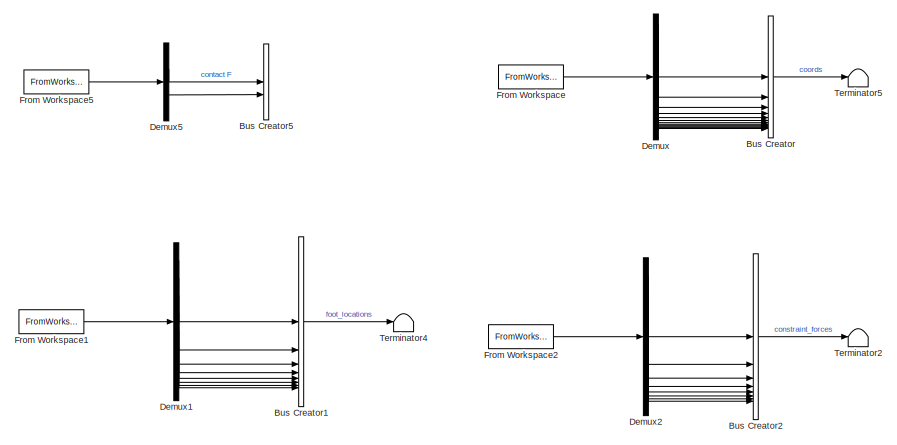
[diagram: root canvas - part 1/2, top center region]
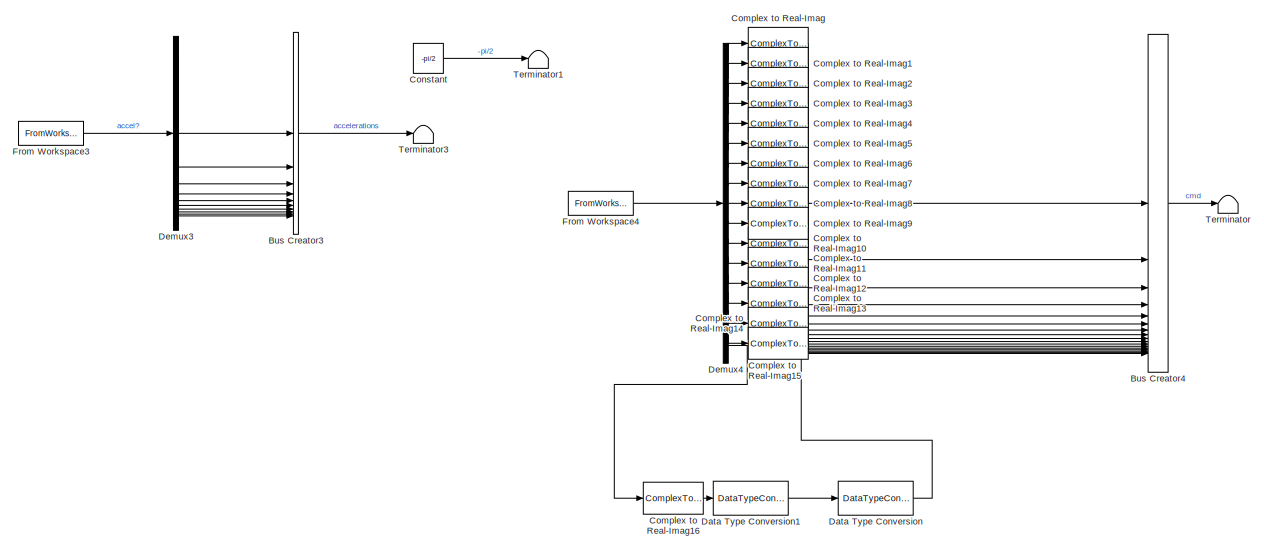
[diagram: root canvas - part 2/2, full width, bottom band]
MODEL slx_690d9588bcd3
KIND model
CONFIG AbsTol = 1e-12
CONFIG EnableMultiTasking = off
CONFIG FixedStep = auto
CONFIG MaxStep = 0.00001
CONFIG MinStep = auto
CONFIG RelTol = 1e-12
CONFIG SampleTimeConstraint = Unconstrained
CONFIG SolverName = ode45
CONFIG StartTime = 0.0
CONFIG StopTime = Sim.time
BLOCK [BusCreator] Bus Creator
  DisplayOption = bar
  InheritFromInputs = off
  Inputs = 12
  OutDataTypeStr = Bus: Coordinate
BLOCK [BusCreator] Bus Creator1
  DisplayOption = bar
  InheritFromInputs = off
  Inputs = 8
  OutDataTypeStr = Bus: Foot
BLOCK [BusCreator] Bus Creator2
  DisplayOption = bar
  InheritFromInputs = off
  Inputs = 8
  OutDataTypeStr = Bus: ConstraintForces
BLOCK [BusCreator] Bus Creator3
  DisplayOption = bar
  InheritFromInputs = off
  Inputs = 10
  OutDataTypeStr = Bus: Accel
BLOCK [BusCreator] Bus Creator4
  DisplayOption = bar
  InheritFromInputs = off
  Inputs = 17
  OutDataTypeStr = Bus: Cmd
BLOCK [BusCreator] Bus Creator5
  DisplayOption = bar
  InheritFromInputs = off
  Inputs = 2
  NonVirtualBus = on
  OutDataTypeStr = Bus: Contact
BLOCK [ComplexToRealImag] Complex to Real-Imag
  Output = Real
BLOCK [ComplexToRealImag] Complex to Real-Imag1
  Output = Real
BLOCK [ComplexToRealImag] Complex to Real-Imag10
  Output = Real
BLOCK [ComplexToRealImag] Complex to Real-Imag11
  Output = Real
BLOCK [ComplexToRealImag] Complex to Real-Imag12
  Output = Real
BLOCK [ComplexToRealImag] Complex to Real-Imag13
  Output = Real
BLOCK [ComplexToRealImag] Complex to Real-Imag14
  Output = Real
BLOCK [ComplexToRealImag] Complex to Real-Imag15
  Output = Real
BLOCK [ComplexToRealImag] Complex to Real-Imag16
  Output = Real
BLOCK [ComplexToRealImag] Complex to Real-Imag2
  Output = Real
BLOCK [ComplexToRealImag] Complex to Real-Imag3
  Output = Real
BLOCK [ComplexToRealImag] Complex to Real-Imag4
  Output = Real
BLOCK [ComplexToRealImag] Complex to Real-Imag5
  Output = Real
BLOCK [ComplexToRealImag] Complex to Real-Imag6
  Output = Real
BLOCK [ComplexToRealImag] Complex to Real-Imag7
  Output = Real
BLOCK [ComplexToRealImag] Complex to Real-Imag8
  Output = Real
BLOCK [ComplexToRealImag] Complex to Real-Imag9
  Output = Real
BLOCK [Constant] Constant
  Value = -pi/2
BLOCK [DataTypeConversion] Data Type Conversion
  OutDataTypeStr = Enum: States
  RndMeth = Floor
  SaturateOnIntegerOverflow = off
BLOCK [DataTypeConversion] Data Type Conversion1
  OutDataTypeStr = int16
  RndMeth = Floor
  SaturateOnIntegerOverflow = off
BLOCK [Demux] Demux
  Outputs = 12
BLOCK [Demux] Demux1
  Outputs = 8
BLOCK [Demux] Demux2
  Outputs = 8
BLOCK [Demux] Demux3
  Outputs = 10
BLOCK [Demux] Demux4
  Outputs = 17
BLOCK [Demux] Demux5
  Outputs = 2
BLOCK [FromWorkspace] From Workspace
  VariableName = coords_sols
BLOCK [FromWorkspace] From Workspace1
  VariableName = foot_sols
BLOCK [FromWorkspace] From Workspace2
  VariableName = constraint_forces_sols
BLOCK [FromWorkspace] From Workspace3
  VariableName = accel_sols
BLOCK [FromWorkspace] From Workspace4
  VariableName = cmd_sols
BLOCK [FromWorkspace] From Workspace5
  VariableName = contact_sols
BLOCK [Terminator] Terminator
BLOCK [Terminator] Terminator1
BLOCK [Terminator] Terminator2
BLOCK [Terminator] Terminator3
BLOCK [Terminator] Terminator4
BLOCK [Terminator] Terminator5
LINE Bus Creator1:1 -> Terminator4:1
LINE Bus Creator2:1 -> Terminator2:1
LINE Bus Creator3:1 -> Terminator3:1
LINE Bus Creator4:1 -> Terminator:1
LINE Bus Creator:1 -> Terminator5:1
LINE Complex to Real-Imag10:1 -> Bus Creator4:11
LINE Complex to Real-Imag11:1 -> Bus Creator4:12
LINE Complex to Real-Imag12:1 -> Bus Creator4:13
LINE Complex to Real-Imag13:1 -> Bus Creator4:14
LINE Complex to Real-Imag14:1 -> Bus Creator4:15
LINE Complex to Real-Imag15:1 -> Bus Creator4:16
LINE Complex to Real-Imag16:1 -> Data Type Conversion1:1
LINE Complex to Real-Imag1:1 -> Bus Creator4:2
LINE Complex to Real-Imag2:1 -> Bus Creator4:3
LINE Complex to Real-Imag3:1 -> Bus Creator4:4
LINE Complex to Real-Imag4:1 -> Bus Creator4:5
LINE Complex to Real-Imag5:1 -> Bus Creator4:6
LINE Complex to Real-Imag6:1 -> Bus Creator4:7
LINE Complex to Real-Imag7:1 -> Bus Creator4:8
LINE Complex to Real-Imag8:1 -> Bus Creator4:9
LINE Complex to Real-Imag9:1 -> Bus Creator4:10
LINE Complex to Real-Imag:1 -> Bus Creator4:1
LINE Constant:1 -> Terminator1:1
LINE Data Type Conversion1:1 -> Data Type Conversion:1
LINE Data Type Conversion:1 -> Bus Creator4:17
LINE Demux1:1 -> Bus Creator1:1
LINE Demux1:2 -> Bus Creator1:2
LINE Demux1:3 -> Bus Creator1:3
LINE Demux1:4 -> Bus Creator1:4
LINE Demux1:5 -> Bus Creator1:5
LINE Demux1:6 -> Bus Creator1:6
LINE Demux1:7 -> Bus Creator1:7
LINE Demux1:8 -> Bus Creator1:8
LINE Demux2:1 -> Bus Creator2:1
LINE Demux2:2 -> Bus Creator2:2
LINE Demux2:3 -> Bus Creator2:3
LINE Demux2:4 -> Bus Creator2:4
LINE Demux2:5 -> Bus Creator2:5
LINE Demux2:6 -> Bus Creator2:6
LINE Demux2:7 -> Bus Creator2:7
LINE Demux2:8 -> Bus Creator2:8
LINE Demux3:1 -> Bus Creator3:1
LINE Demux3:10 -> Bus Creator3:10
LINE Demux3:2 -> Bus Creator3:2
LINE Demux3:3 -> Bus Creator3:3
LINE Demux3:4 -> Bus Creator3:4
LINE Demux3:5 -> Bus Creator3:5
LINE Demux3:6 -> Bus Creator3:6
LINE Demux3:7 -> Bus Creator3:7
LINE Demux3:8 -> Bus Creator3:8
LINE Demux3:9 -> Bus Creator3:9
LINE Demux4:1 -> Complex to Real-Imag:1
LINE Demux4:10 -> Complex to Real-Imag9:1
LINE Demux4:11 -> Complex to Real-Imag10:1
LINE Demux4:12 -> Complex to Real-Imag11:1
LINE Demux4:13 -> Complex to Real-Imag12:1
LINE Demux4:14 -> Complex to Real-Imag13:1
LINE Demux4:15 -> Complex to Real-Imag14:1
LINE Demux4:16 -> Complex to Real-Imag15:1
LINE Demux4:17 -> Complex to Real-Imag16:1
LINE Demux4:2 -> Complex to Real-Imag1:1
LINE Demux4:3 -> Complex to Real-Imag2:1
LINE Demux4:4 -> Complex to Real-Imag3:1
LINE Demux4:5 -> Complex to Real-Imag4:1
LINE Demux4:6 -> Complex to Real-Imag5:1
LINE Demux4:7 -> Complex to Real-Imag6:1
LINE Demux4:8 -> Complex to Real-Imag7:1
LINE Demux4:9 -> Complex to Real-Imag8:1
LINE Demux5:1 -> Bus Creator5:1
LINE Demux5:2 -> Bus Creator5:2
LINE Demux:1 -> Bus Creator:1
LINE Demux:10 -> Bus Creator:10
LINE Demux:11 -> Bus Creator:11
LINE Demux:12 -> Bus Creator:12
LINE Demux:2 -> Bus Creator:2
LINE Demux:3 -> Bus Creator:3
LINE Demux:4 -> Bus Creator:4
LINE Demux:5 -> Bus Creator:5
LINE Demux:6 -> Bus Creator:6
LINE Demux:7 -> Bus Creator:7
LINE Demux:8 -> Bus Creator:8
LINE Demux:9 -> Bus Creator:9
LINE From Workspace1:1 -> Demux1:1
LINE From Workspace2:1 -> Demux2:1
LINE From Workspace3:1 -> Demux3:1
LINE From Workspace4:1 -> Demux4:1
LINE From Workspace5:1 -> Demux5:1
LINE From Workspace:1 -> Demux:1
